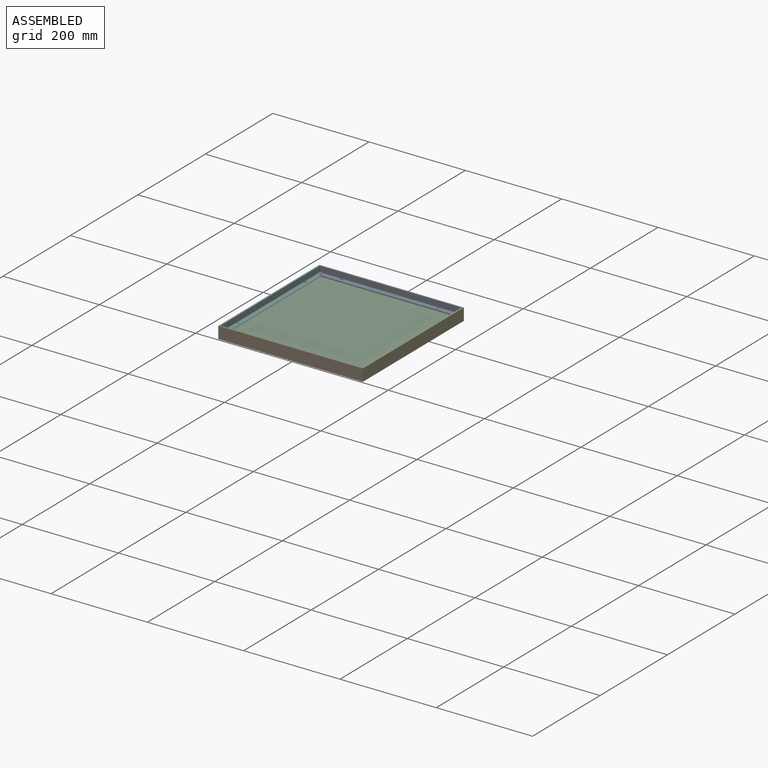
[diagram: assembled view]
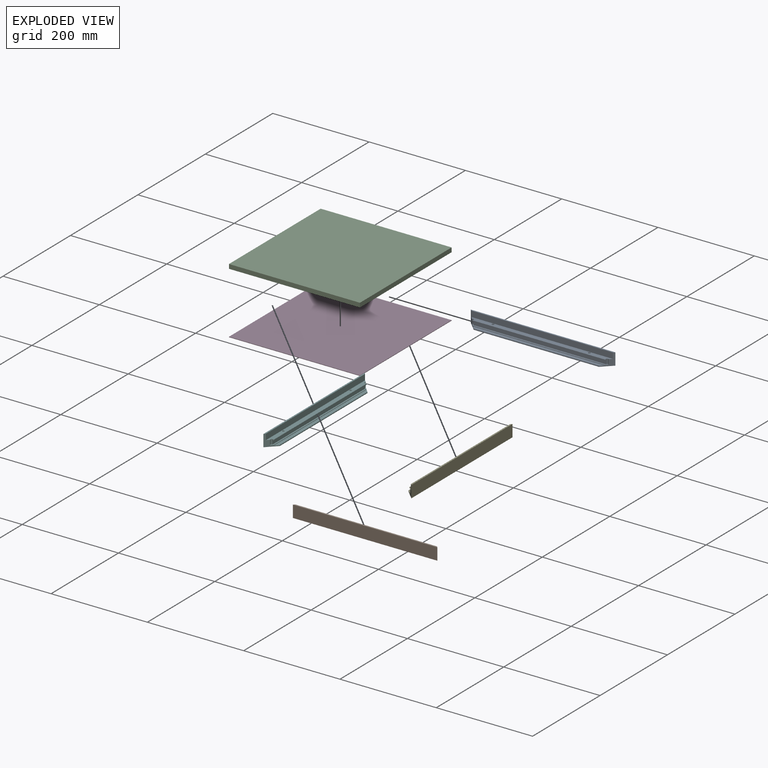
[diagram: exploded view]
GUIDED TOUR — MATED ASSEMBLY (Onshape document 12bc4e3463e9429ae9cbe3ed, AutoMate assembly 12bc4e3463e9429ae9cbe3ed_53566eec6820f01d80c9ada5_fbe62a0ebc791a2cdbce596f_default)

This assembly has 6 components, labeled P0..P5 below (a component is one placed occurrence of a part; the same part can appear more than once), held together by 5 mates. A mate is a constraint between two components; its type names the relative motion it leaves free:
  FASTENED — locks the two components together rigidly (no relative motion).
Axis/direction vectors are unit vectors and 'through' points are millimeter coordinates, both in the assembly's world frame.

MATES
  1. FASTENED "Fastened 3": P4 <-> P0, direction (-0.707, 0.707, 0.000) through (171.80, 252.36, -86.81) mm
  2. FASTENED "Fastened 2": P0 <-> P5, direction (-0.707, -0.707, 0.000) through (-117.96, 252.36, -86.81) mm
  3. FASTENED "Fastened 1": P5 <-> P1, direction (0.707, -0.707, 0.000) through (-117.96, -37.39, -86.81) mm
  4. FASTENED "Fastened 4": P3 <-> P5, direction (0.000, 0.000, 1.000) through (-110.08, -29.52, -93.07) mm
  5. FASTENED "Fastened 5": P2 <-> P3, direction (0.000, 0.000, -1.000) through (25.92, 106.48, -92.07) mm

ASSEMBLY ORDER
  1. P3 — the base component [order verified]
  2. P2 [order verified]
  3. P5 [order verified]
  4. P0 [order verified]
  5. P4 [order verified]
  6. P1 [order verified]
Order-tag legend:
  [order verified] — this step's position reverses a verified removal order: the component was checked to insert without passing through the ones already placed.

Of the 6 components, 4 carry the full construction recipe — the FeatureScript program that regenerates the part's solid from scratch; the rest are supplied as boundary geometry only.
Each toured component is shown spotlighted twice — in the assembled view, then in the exploded view, where a leader line traces a displaced component back to its assembled socket (saturated green if recipe-attached, orange if geometry-only; every other component desaturated gray) — followed by its recipe or geometry summary and the mates that hold it.
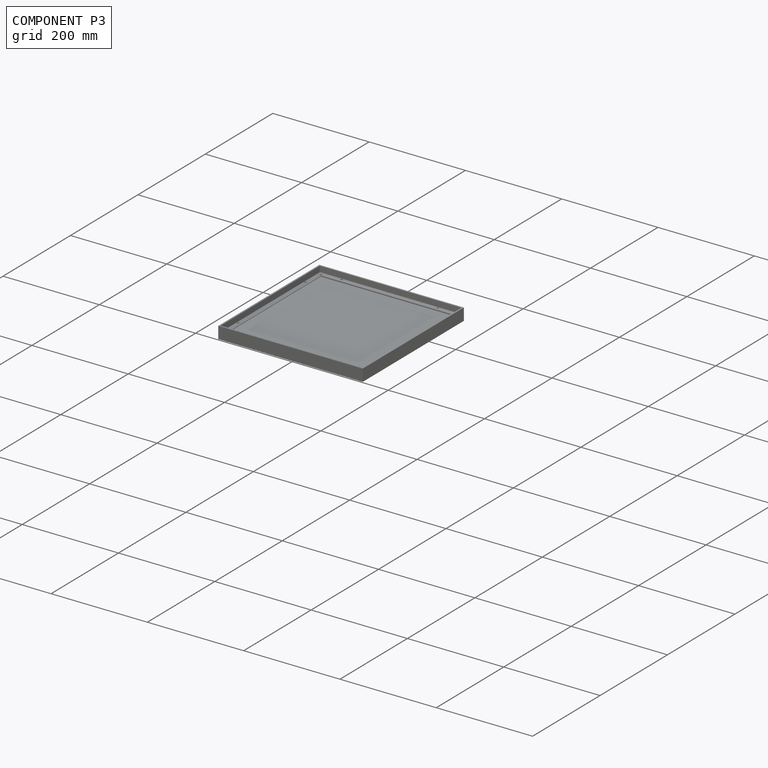
[diagram: component P3 — assembled]
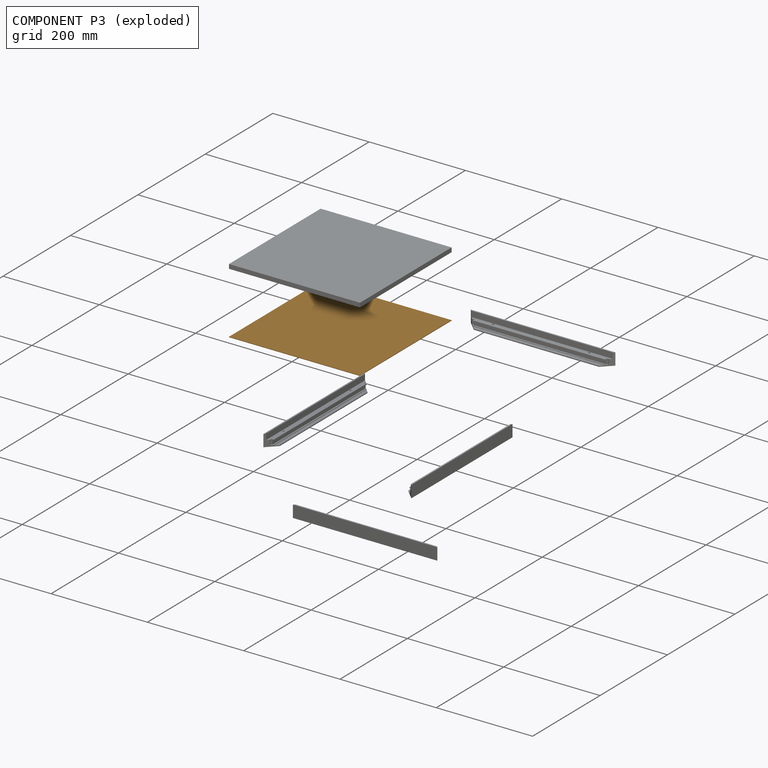
[diagram: component P3 — exploded]
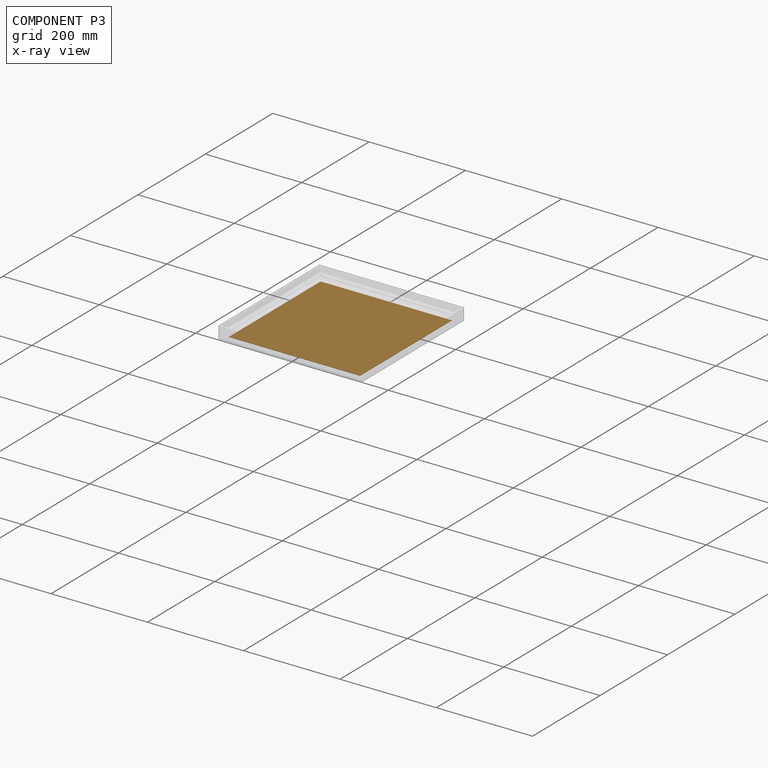
[diagram: component P3 — x-ray view]
COMPONENT P3 — geometry summary (no construction recipe available for this part):
  bounding box: 272.0 x 272.0 x 1.0 mm
  B-rep topology: 1 solid, 6 faces, 24 edges
  volume: 73984 mm^3 (100% of its bounding box)
  symmetry: 2-fold rotationally symmetric about the x axis; 2-fold rotationally symmetric about the y axis; 4-fold rotationally symmetric about the z axis; mirror-symmetric across its x mid-plane, y mid-plane, z mid-plane
Held by: FASTENED mate "Fastened 4" to P5; FASTENED mate "Fastened 5" to P2.
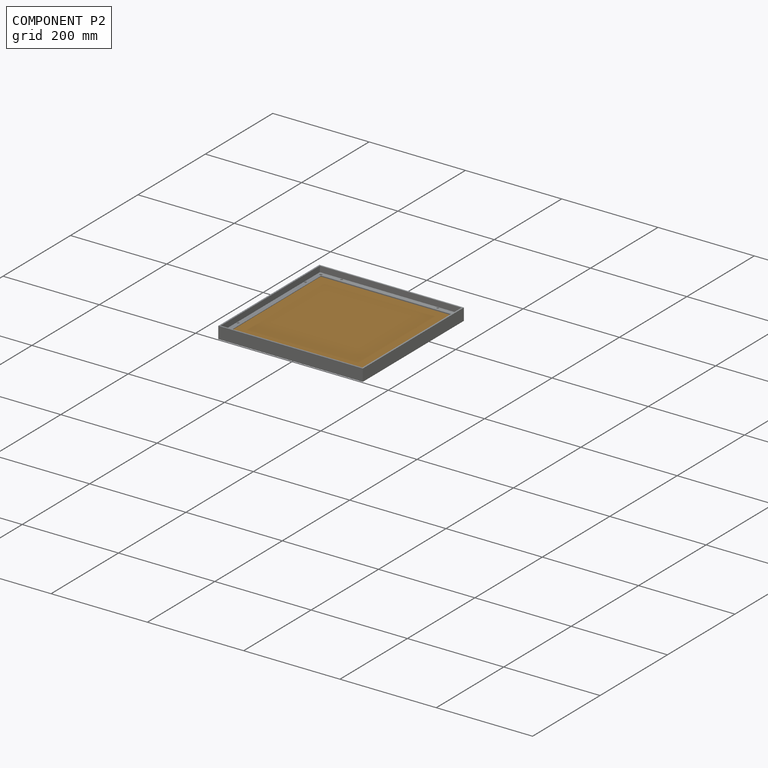
[diagram: component P2 — assembled]
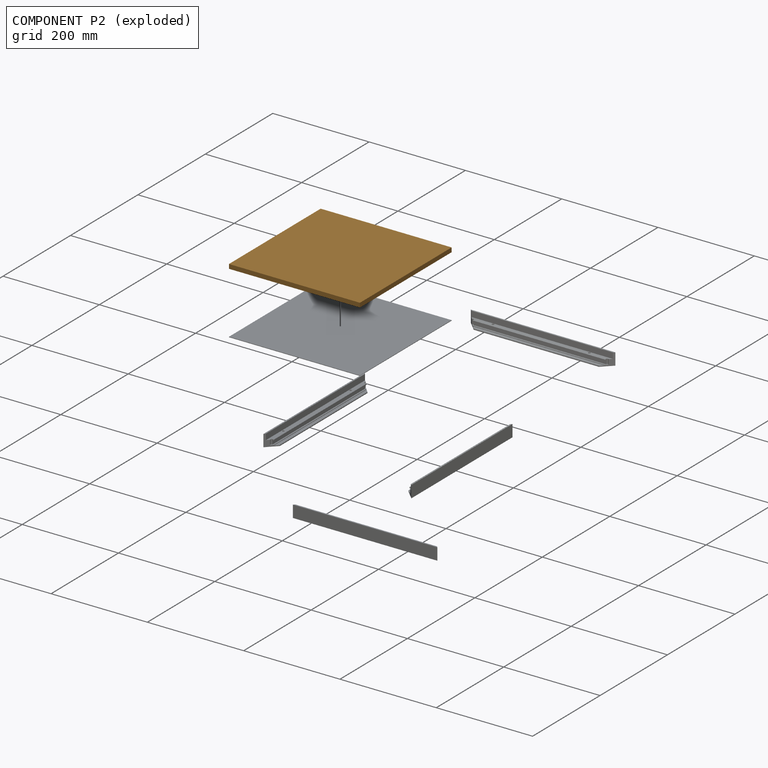
[diagram: component P2 — exploded]
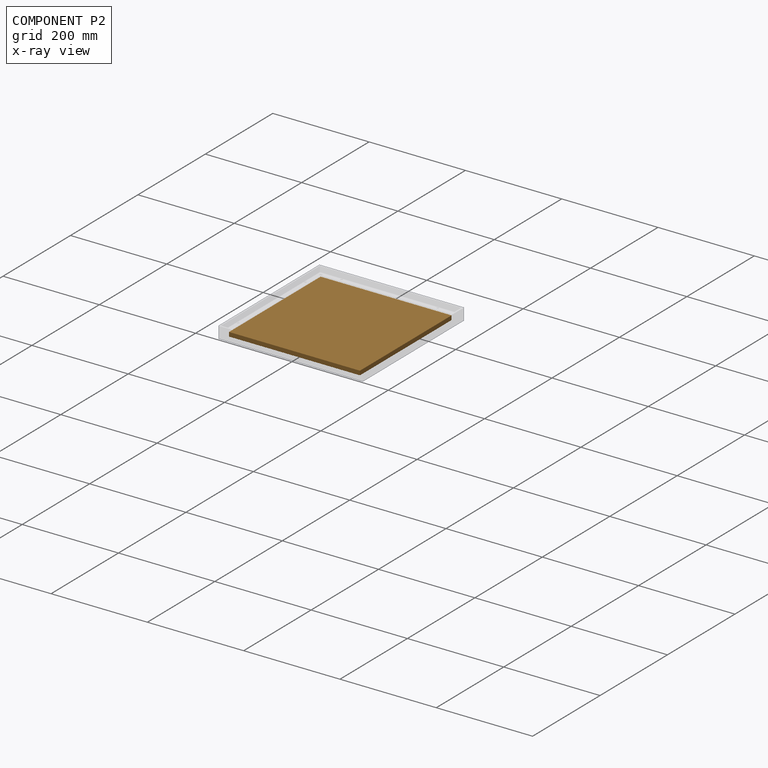
[diagram: component P2 — x-ray view]
COMPONENT P2 — geometry summary (no construction recipe available for this part):
  bounding box: 272.0 x 272.0 x 9.0 mm
  B-rep topology: 1 solid, 6 faces, 24 edges
  volume: 665856 mm^3 (100% of its bounding box)
  symmetry: 2-fold rotationally symmetric about the x axis; 2-fold rotationally symmetric about the y axis; 4-fold rotationally symmetric about the z axis; mirror-symmetric across its x mid-plane, y mid-plane, z mid-plane
Held by: FASTENED mate "Fastened 5" to P3.
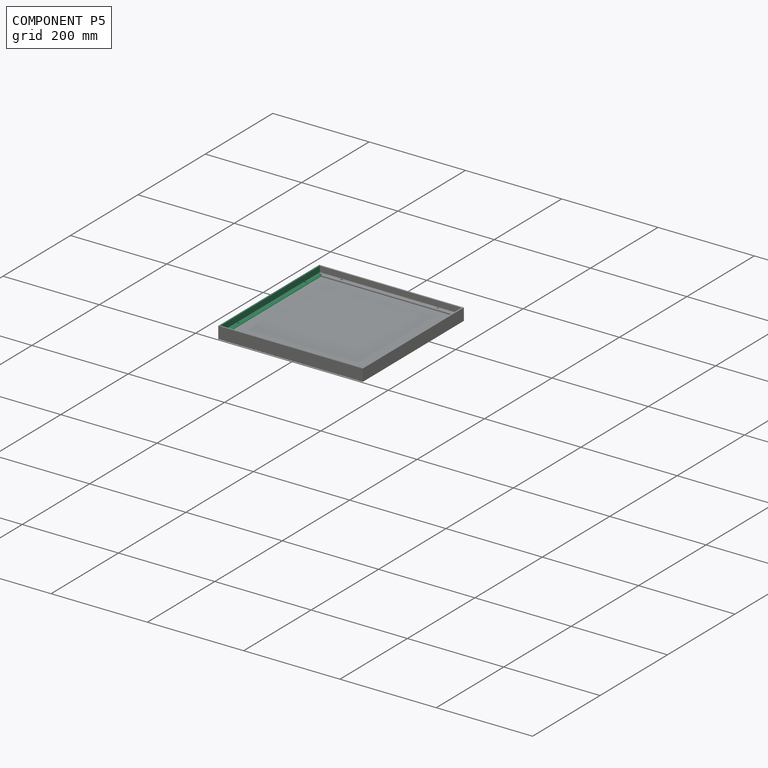
[diagram: component P5 — assembled]
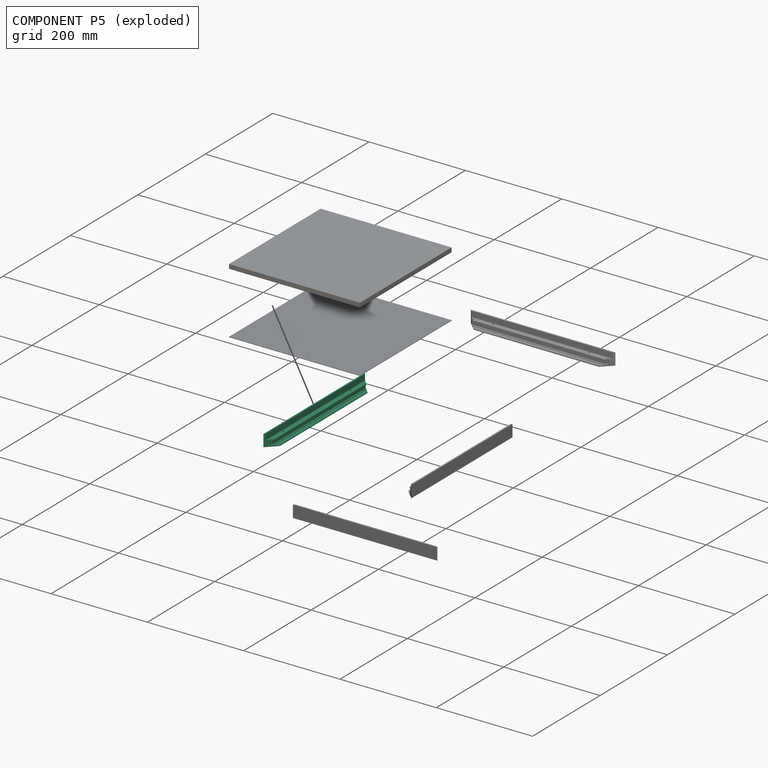
[diagram: component P5 — exploded]
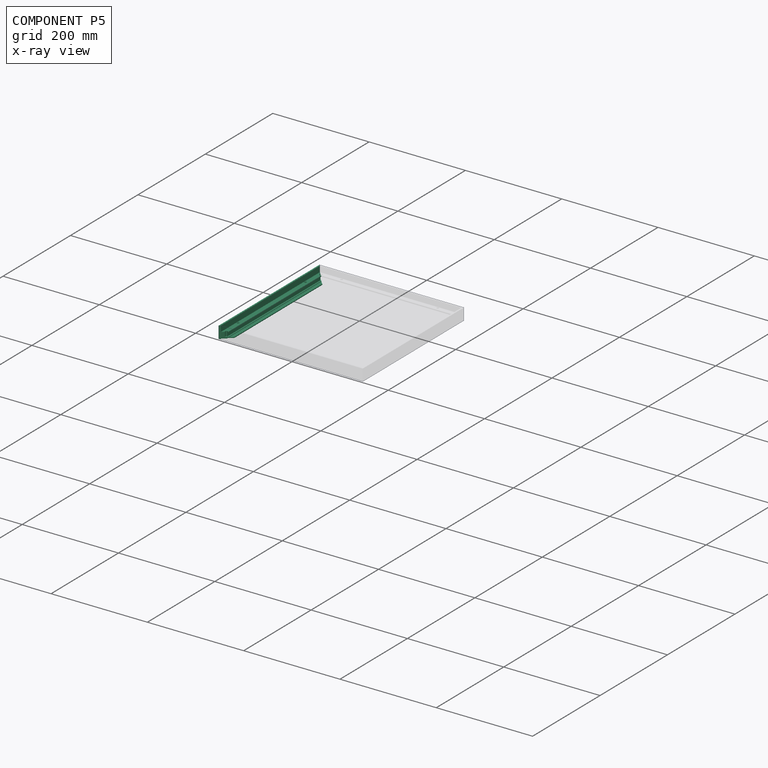
[diagram: component P5 — x-ray view]
COMPONENT P5 — same part as P0 (CADFS 00657827); its construction recipe is shown at P0.
Held by: FASTENED mate "Fastened 2" to P0; FASTENED mate "Fastened 1" to P1; FASTENED mate "Fastened 4" to P3.
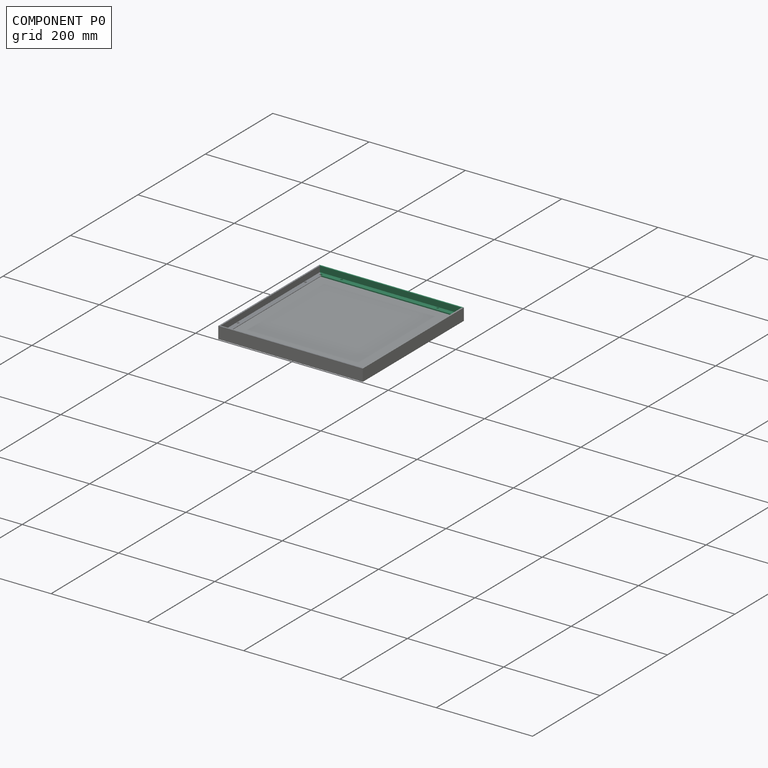
[diagram: component P0 — assembled]
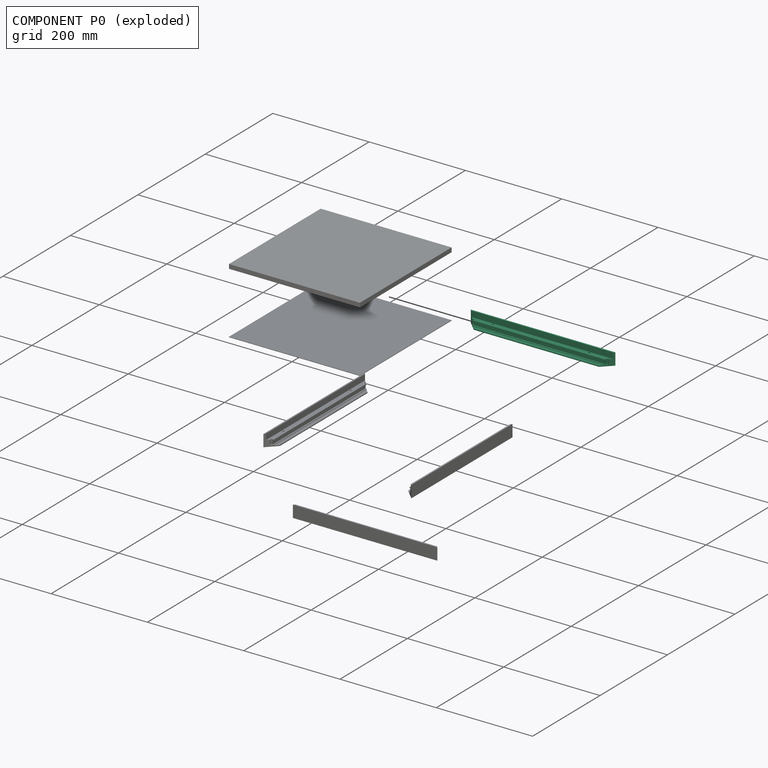
[diagram: component P0 — exploded]
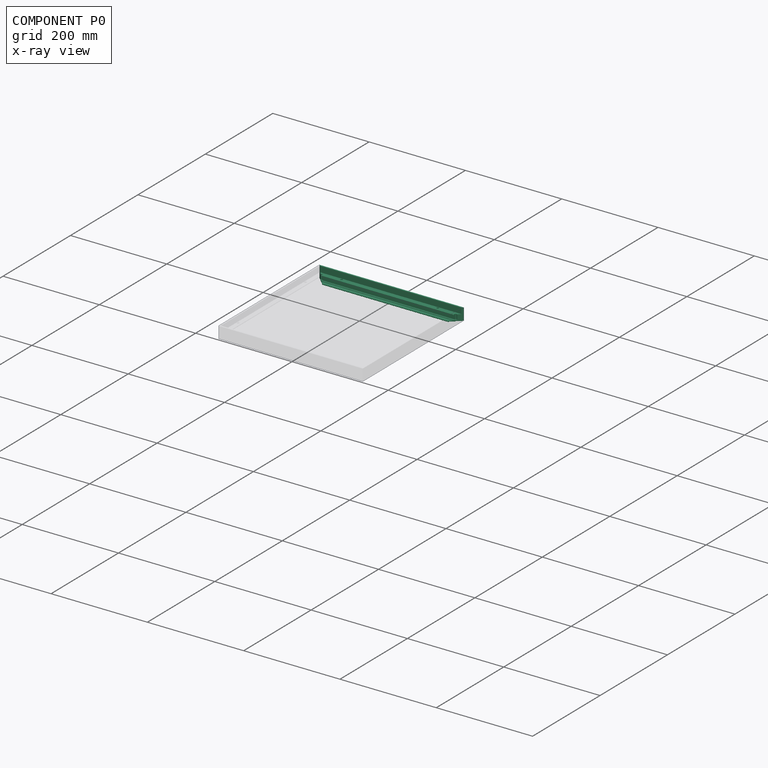
[diagram: component P0 — x-ray view]
COMPONENT P0 — recipe-attached (CADFS 00657827, mesh-verified: the recipe's output STEP matches this component's geometry to below the mesh-comparison resolution (tessellation chordal tolerance ~0.453 mm)).
Held by: FASTENED mate "Fastened 3" to P4; FASTENED mate "Fastened 2" to P5.
Construction recipe (FeatureScript — the CAD program that rebuilds this solid; sketch coordinates are in the units given by the * unit suffixes, e.g. mm):

FeatureScript 1511;
import(path : "onshape/std/geometry.fs", version : "1511.0");
import(path : "onshape/std/common.fs", version : "1511.0");
const mm = millimeter;
const VERTEX = EntityType.VERTEX;
const EDGE = EntityType.EDGE;
const FACE = EntityType.FACE;
const BODY = EntityType.BODY;
function v(x, y){return vector(x, y);}
function OD(order){return orderDisambiguation(order);}
function OSD(set){return originalSetDisambiguation(set);}
function TD(topology){return topologyDisambiguation(topology);}
function TDD(query){return trueDependencyDisambiguation(query);}
function sQuery(a, b, c) {return sketchEntityQuery(a, b, c);}

annotation { "Feature Type Name" : "Feature", "Feature Type Description" : "" }
export const myFeature = defineFeature(function(context is Context, id is Id, definition is map)
    precondition{}
    {
        {
            var Q0;
            Q0=qCreatedBy(makeId("Front.planeOp"),FACE);
            var sketch = newSketch(context, id + "F0", { "sketchPlane" : qUnion([Q0])});
            skLineSegment(sketch, "E0.bottom", {"start": v(0, 0) * mm, "end": v(-10, 0) * mm});
            skLineSegment(sketch, "E0.top", {"start": v(0, -10) * mm, "end": v(-10, -10) * mm});
            skLineSegment(sketch, "E0.left", {"start": v(0, 0) * mm, "end": v(0, -10) * mm});
            skLineSegment(sketch, "E0.right", {"start": v(-10, 0) * mm, "end": v(-10, -10) * mm});
            skLineSegment(sketch, "E1.bottom", {"start": v(0, -10) * mm, "end": v(3, -10) * mm});
            skLineSegment(sketch, "E1.top", {"start": v(0, -8) * mm, "end": v(3, -8) * mm});
            skLineSegment(sketch, "E1.left", {"start": v(0, -10) * mm, "end": v(0, -8) * mm});
            skLineSegment(sketch, "E1.right", {"start": v(3, -10) * mm, "end": v(3, -8) * mm});
            skLineSegment(sketch, "E2.bottom", {"start": v(3, -10) * mm, "end": v(10, -10) * mm});
            skLineSegment(sketch, "E2.top", {"start": v(3, -9) * mm, "end": v(10, -9) * mm});
            skLineSegment(sketch, "E2.left", {"start": v(3, -10) * mm, "end": v(3, -9) * mm});
            skLineSegment(sketch, "E2.right", {"start": v(10, -10) * mm, "end": v(10, -9) * mm});
            skLineSegment(sketch, "E3.bottom", {"start": v(-10, 0) * mm, "end": v(3, 0) * mm});
            skLineSegment(sketch, "E3.top", {"start": v(-10, 2) * mm, "end": v(3, 2) * mm});
            skLineSegment(sketch, "E3.left", {"start": v(-10, 0) * mm, "end": v(-10, 2) * mm});
            skLineSegment(sketch, "E3.right", {"start": v(3, 0) * mm, "end": v(3, 2) * mm});
            skLineSegment(sketch, "E4.bottom", {"start": v(-10, 2) * mm, "end": v(-7, 2) * mm});
            skLineSegment(sketch, "E4.top", {"start": v(-10, 14) * mm, "end": v(-7, 14) * mm});
            skLineSegment(sketch, "E4.left", {"start": v(-10, 2) * mm, "end": v(-10, 14) * mm});
            skLineSegment(sketch, "E4.right", {"start": v(-7, 2) * mm, "end": v(-7, 14) * mm});
            skLineSegment(sketch, "E5.bottom", {"start": v(-10, -10) * mm, "end": v(10, -10) * mm});
            skLineSegment(sketch, "E5.top", {"start": v(-10, -11) * mm, "end": v(10, -11) * mm});
            skLineSegment(sketch, "E5.left", {"start": v(-10, -10) * mm, "end": v(-10, -11) * mm});
            skLineSegment(sketch, "E5.right", {"start": v(10, -10) * mm, "end": v(10, -11) * mm});
            skSolve(sketch);
        }
        {
            var Q0;
            Q0=makeQuery(id+"F0.imprint","IMPRINT",FACE,{"disambiguationData":[TD([[makeQuery(id+"F0.imprint","IMPRINT",EDGE,{"derivedFrom":sQuery(id+"F0.wireOp",EDGE,"E4.top")}),-1.0]])]});
            var Q1;
            Q1=makeQuery(id+"F0.imprint","IMPRINT",FACE,{"disambiguationData":[TD([[makeQuery(id+"F0.imprint","IMPRINT",EDGE,{"derivedFrom":sQuery(id+"F0.wireOp",EDGE,"E0.bottom")}),-1.0]])]});
            var Q2;
            {var subQ3=sQuery(id+"F0.wireOp",EDGE,"E0.bottom");Q2=makeQuery(id+"F0.imprint","IMPRINT",FACE,{"disambiguationData":[TD([[makeQuery(id+"F0.imprint","IMPRINT",EDGE,{"derivedFrom":subQ3}),1.0]])]});}
            var Q3;
            Q3=makeQuery(id+"F0.imprint","IMPRINT",FACE,{"disambiguationData":[TD([[makeQuery(id+"F0.imprint","IMPRINT",EDGE,{"derivedFrom":sQuery(id+"F0.wireOp",EDGE,"E0.top")}),1.0]])]});
            var Q4;
            {var subQ0=sQuery(id+"F0.wireOp",EDGE,"E2.bottom");Q4=makeQuery(id+"F0.imprint","IMPRINT",FACE,{"disambiguationData":[TD([[makeQuery(id+"F0.imprint","IMPRINT",EDGE,{"derivedFrom":subQ0}),1.0]])]});}
            var Q5;
            {var subQ1=sQuery(id+"F0.wireOp",EDGE,"E1.bottom");Q5=makeQuery(id+"F0.imprint","IMPRINT",FACE,{"disambiguationData":[TD([[makeQuery(id+"F0.imprint","IMPRINT",EDGE,{"derivedFrom":subQ1}),1.0]])]});}
            extrude(context, id + "F1", {"entities" : qUnion([Q0, Q1, Q2, Q3, Q4, Q5]), "depth" : 150 * mm, "offsetDistance" : 25 * mm});
        }
        {
            var Q0;
            Q0=makeQuery(id+"F1.opExtrude","SWEPT_FACE",FACE,{"disambiguationData":[OSD([sQuery(id+"F0.wireOp",EDGE,"E3.top")])]});
            var sketch = newSketch(context, id + "F2", { "sketchPlane" : qUnion([Q0])});
            skLineSegment(sketch, "E6", {"start": v(-2, -150) * mm, "end": v(-2, -100) * mm});
            skLineSegment(sketch, "E7", {"start": v(-2, -100) * mm, "end": v(-4, -100) * mm});
            skCircle(sketch, "E8", {"center": v(-4, -100) * mm, "radius": 2 * mm});
            skSolve(sketch);
        }
        {
            var Q0;
            Q0=sQuery(id+"F2.wireOp",VERTEX,"E8.center");
            var Q1;
            Q1=makeQuery(id+"F1.opExtrude","SWEPT_BODY",BODY,{"disambiguationData":[OSD([sQuery(id+"F0.wireOp",EDGE,"E0.left"),sQuery(id+"F0.wireOp",EDGE,"E0.right"),sQuery(id+"F0.wireOp",EDGE,"E1.top"),sQuery(id+"F0.wireOp",EDGE,"E1.right"),sQuery(id+"F0.wireOp",EDGE,"E2.top"),sQuery(id+"F0.wireOp",EDGE,"E2.right"),sQuery(id+"F0.wireOp",EDGE,"E3.bottom"),sQuery(id+"F0.wireOp",EDGE,"E3.top"),sQuery(id+"F0.wireOp",EDGE,"E3.left"),sQuery(id+"F0.wireOp",EDGE,"E3.right"),sQuery(id+"F0.wireOp",EDGE,"E4.top"),sQuery(id+"F0.wireOp",EDGE,"E4.left"),sQuery(id+"F0.wireOp",EDGE,"E4.right"),sQuery(id+"F0.wireOp",EDGE,"E5.top"),sQuery(id+"F0.wireOp",EDGE,"E5.left"),sQuery(id+"F0.wireOp",EDGE,"E5.right")])]});
            hole(context, id + "F3", {"style" : HoleStyle.SIMPLE, "endStyle" : HoleEndStyle.BLIND, "standardTappedOrClearance" : lookupTablePath({ "standard" : "ISO", "fit" : "Normal", "size" : "M4", "type" : "Clearance" }), "standardBlindInLast" : lookupTablePath({ "fit" : "Standard", "standard" : "ISO", "size" : "M4", "type" : "Clearance" }), "holeDiameter" : 4.4 * mm, "majorDiameter" : 5 * mm, "holeDepth" : 10.4 * mm, "isTappedThrough" : true, "tappedDepth" : 8 * mm, "tapClearance" : 3, "locations" : qUnion([Q0]), "scope" : qUnion([Q1])});
        }
        {
            var Q0;
            Q0=makeQuery(id+"F1.opExtrude","CAP_EDGE",EDGE,{"disambiguationData":[OSD([sQuery(id+"F0.wireOp",EDGE,"E2.right"),sQuery(id+"F0.wireOp",EDGE,"E5.right")])],"isStart":false});
            chamfer(context, id + "F4", {"entities" : qUnion([Q0]), "width" : 20 * mm, "tangentPropagation" : true});
        }
        {
            var Q0;
            Q0=makeQuery(id+"F1.opExtrude","SWEPT_FACE",FACE,{"disambiguationData":[OSD([sQuery(id+"F0.wireOp",EDGE,"E3.bottom")])]});
            var sketch = newSketch(context, id + "F5", { "sketchPlane" : qUnion([Q0])});
            skCircle(sketch, "E9", {"center": v(0, 140) * mm, "radius": 2.5 * mm});
            skSolve(sketch);
        }
        {
            var Q0;
            {var subQ0=sQuery(id+"F5.wireOp",EDGE,"E9");var subQ1=sQuery(id+"F0.wireOp",EDGE,"E3.bottom");var subQ2=makeQuery(id+"F1.opExtrude","SWEPT_EDGE",EDGE,{"disambiguationData":[OSD([sQuery(id+"F0.wireOp",EDGE,"E0.bottom"),sQuery(id+"F0.wireOp",EDGE,"E0.left"),subQ1])]});var subQ3=makeQuery(id+"F5.imprint","INTERSECT",VERTEX,{"derivedFrom":[subQ2,subQ0]});Q0=makeQuery(id+"F5.imprint","IMPRINT",FACE,{"disambiguationData":[TD([[makeQuery(id+"F5.imprint","IMPRINT",EDGE,{"disambiguationData":[TD([[subQ3,1.0]])],"derivedFrom":subQ0}),1.0]])]});}
            var Q1;
            {var subQ0=sQuery(id+"F5.wireOp",EDGE,"E9");var subQ1=sQuery(id+"F0.wireOp",EDGE,"E3.bottom");var subQ2=makeQuery(id+"F1.opExtrude","SWEPT_EDGE",EDGE,{"disambiguationData":[OSD([sQuery(id+"F0.wireOp",EDGE,"E0.bottom"),sQuery(id+"F0.wireOp",EDGE,"E0.left"),subQ1])]});var subQ3=makeQuery(id+"F5.imprint","INTERSECT",VERTEX,{"derivedFrom":[subQ2,subQ0]});Q1=makeQuery(id+"F5.imprint","IMPRINT",FACE,{"disambiguationData":[TD([[makeQuery(id+"F5.imprint","IMPRINT",EDGE,{"disambiguationData":[TD([[subQ3,-1.0]])],"derivedFrom":subQ0}),1.0]])]});}
            var Q2;
            Q2=sQuery(id+"F5.wireOp",EDGE,"E9");
            extrude(context, id + "F6", {"entities" : qUnion([Q0, Q1]), "operationType" : NewBodyOperationType.REMOVE, "surfaceEntities" : qUnion([Q2]), "endBound" : BoundingType.SYMMETRIC, "oppositeDirection" : true, "depth" : 16 * mm, "offsetDistance" : 25 * mm});
        }
        {
            var Q0;
            Q0=makeQuery(id+"F1.opExtrude","SWEPT_BODY",BODY,{"disambiguationData":[OSD([sQuery(id+"F0.wireOp",EDGE,"E0.left"),sQuery(id+"F0.wireOp",EDGE,"E0.right"),sQuery(id+"F0.wireOp",EDGE,"E1.top"),sQuery(id+"F0.wireOp",EDGE,"E1.right"),sQuery(id+"F0.wireOp",EDGE,"E2.top"),sQuery(id+"F0.wireOp",EDGE,"E2.right"),sQuery(id+"F0.wireOp",EDGE,"E3.bottom"),sQuery(id+"F0.wireOp",EDGE,"E3.top"),sQuery(id+"F0.wireOp",EDGE,"E3.left"),sQuery(id+"F0.wireOp",EDGE,"E3.right"),sQuery(id+"F0.wireOp",EDGE,"E4.top"),sQuery(id+"F0.wireOp",EDGE,"E4.left"),sQuery(id+"F0.wireOp",EDGE,"E4.right"),sQuery(id+"F0.wireOp",EDGE,"E5.top"),sQuery(id+"F0.wireOp",EDGE,"E5.left"),sQuery(id+"F0.wireOp",EDGE,"E5.right")])]});
            var Q1;
            Q1=makeQuery(id+"F1.opExtrude","CAP_FACE",FACE,{"disambiguationData":[OSD([sQuery(id+"F0.wireOp",EDGE,"E0.left"),sQuery(id+"F0.wireOp",EDGE,"E0.right"),sQuery(id+"F0.wireOp",EDGE,"E1.top"),sQuery(id+"F0.wireOp",EDGE,"E1.right"),sQuery(id+"F0.wireOp",EDGE,"E2.top"),sQuery(id+"F0.wireOp",EDGE,"E2.right"),sQuery(id+"F0.wireOp",EDGE,"E3.bottom"),sQuery(id+"F0.wireOp",EDGE,"E3.top"),sQuery(id+"F0.wireOp",EDGE,"E3.left"),sQuery(id+"F0.wireOp",EDGE,"E3.right"),sQuery(id+"F0.wireOp",EDGE,"E4.top"),sQuery(id+"F0.wireOp",EDGE,"E4.left"),sQuery(id+"F0.wireOp",EDGE,"E4.right"),sQuery(id+"F0.wireOp",EDGE,"E5.top"),sQuery(id+"F0.wireOp",EDGE,"E5.left"),sQuery(id+"F0.wireOp",EDGE,"E5.right")])],"isStart":true});
            mirror(context, id + "F7", {"operationType" : NewBodyOperationType.ADD, "entities" : qUnion([Q0]), "mirrorPlane" : qUnion([Q1])});
        }
    });
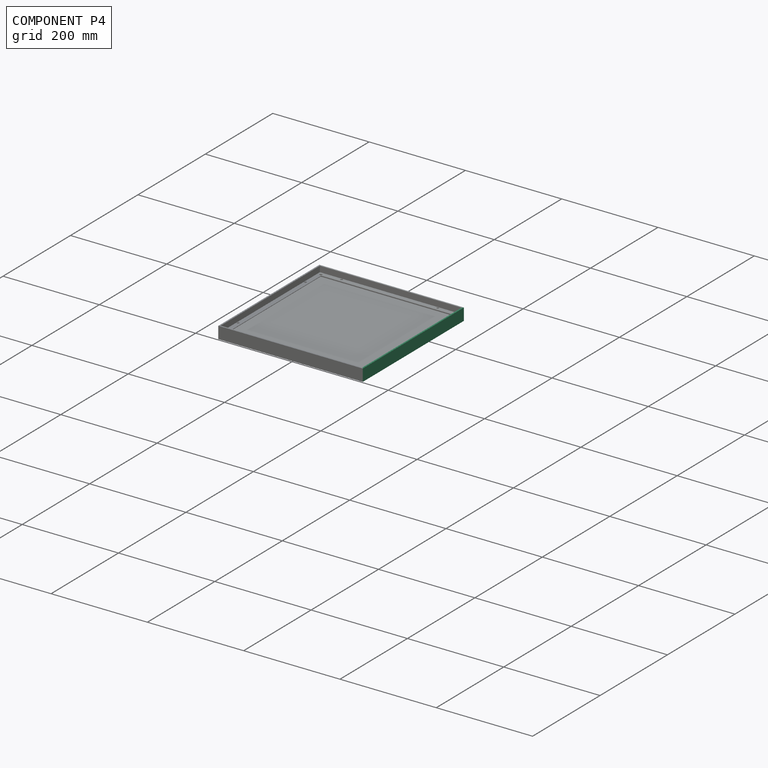
[diagram: component P4 — assembled]
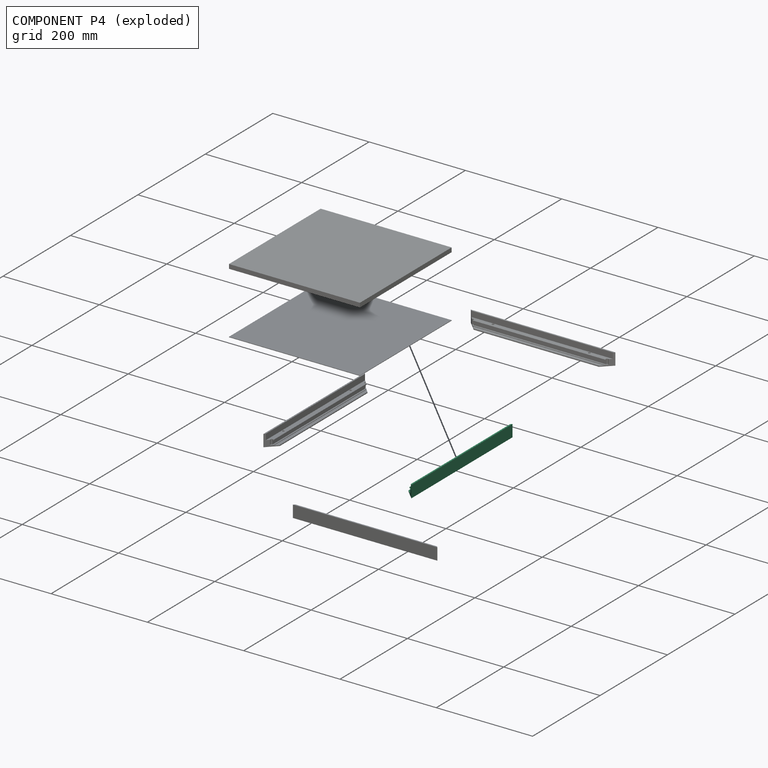
[diagram: component P4 — exploded]
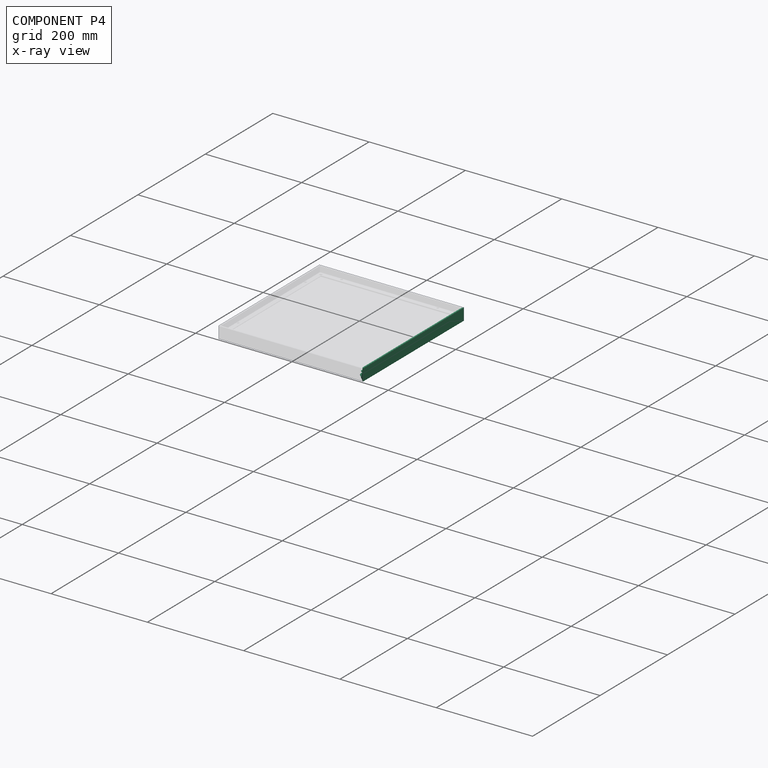
[diagram: component P4 — x-ray view]
COMPONENT P4 — same part as P0 (CADFS 00657827); its construction recipe is shown at P0.
Held by: FASTENED mate "Fastened 3" to P0.
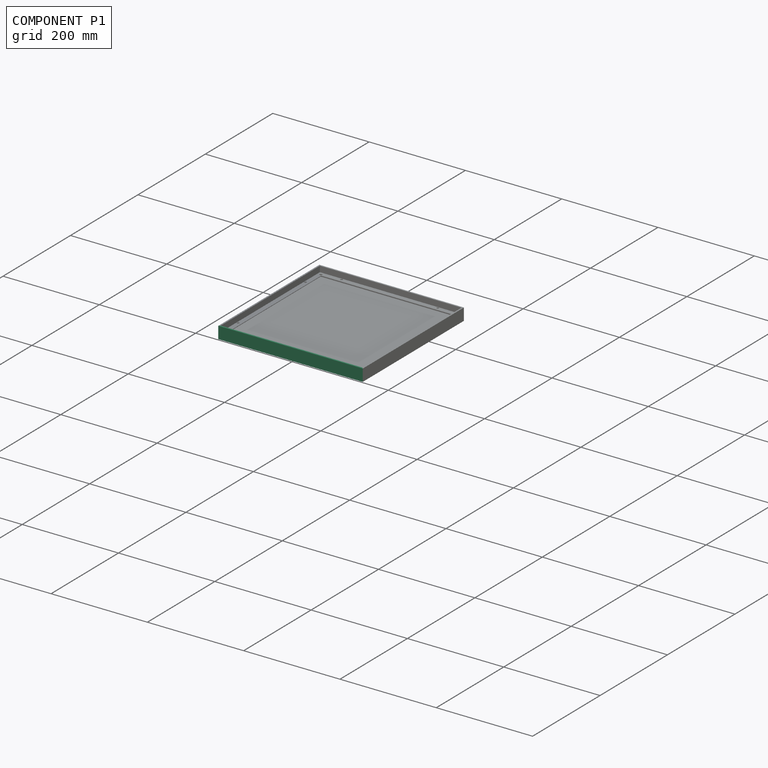
[diagram: component P1 — assembled]
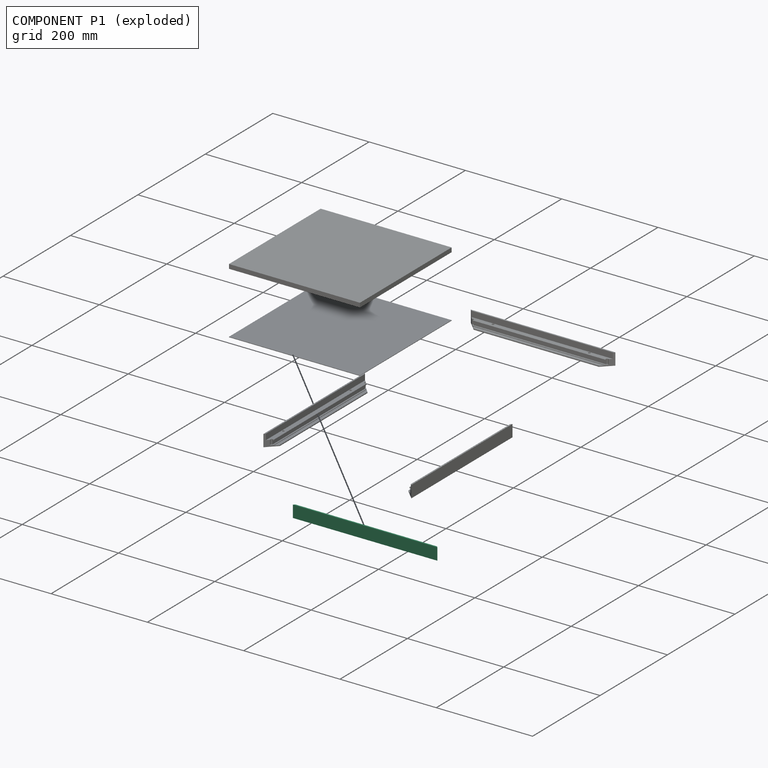
[diagram: component P1 — exploded]
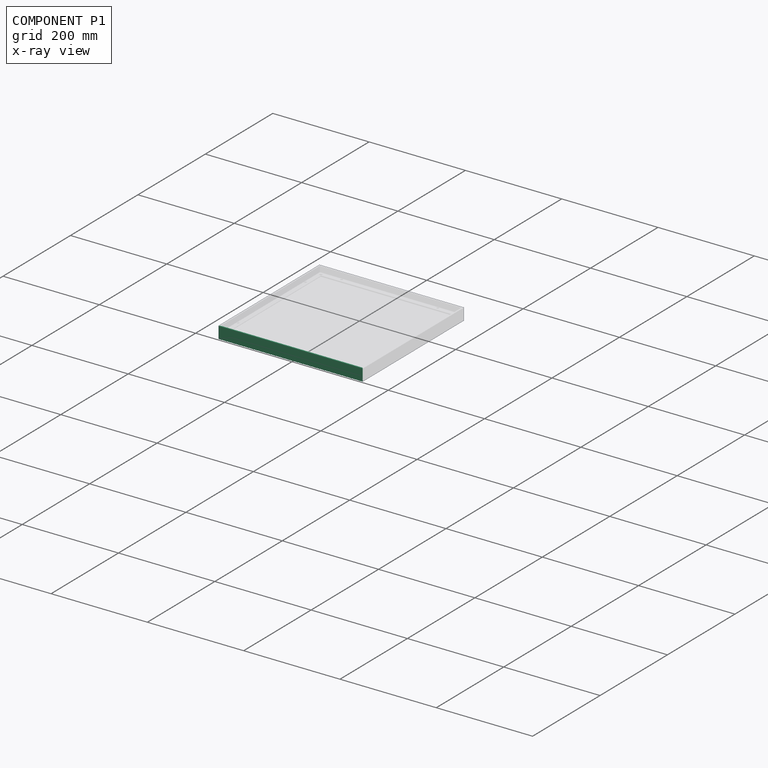
[diagram: component P1 — x-ray view]
COMPONENT P1 — same part as P0 (CADFS 00657827); its construction recipe is shown at P0.
Held by: FASTENED mate "Fastened 1" to P5.
PROVENANCE & LICENSES
Assembly (occurrences, transforms, mates, per-part STEP geometry): AutoMate dataset, Zenodo record 7776208, CC0.
Construction recipes: CADFS (HuggingFace VladPyatov/CADFS, CC-BY-4.0, layered over the ABC dataset), FeatureScript reconstruction programs keyed by ABC model id.
Join: ABC meta listings map ABC model id -> Onshape documentId; within a shared document, parts are matched by geometric signature (bounding-box dims + volume at 0.1% relative tolerance, exact B-rep face/solid counts).
Verification: 4 of this assembly's 6 components carry a recipe attachment, and every attachment is mesh-verified: the CADFS STEP and the AutoMate member STEP were compared as meshes in their shared local frame (symmetric sampled-point-to-mesh distance); worst across the 4 attachments: below the mesh-comparison resolution (tessellation chordal tolerance ~0.453 mm) on a 302 mm part.
Renders: orthographic iso camera (az 35 / el 25); the floor grid conveys scale (grid pitch printed in each image; no ruler). In the exploded view each component is displaced by its stored offset vector: the offsets alone carry the explosion direction (mate normal/axis signs are not orientation cues and do not encode it), and separation distances are assigned per mate-chain, not proportionally to assembly-order depth.
